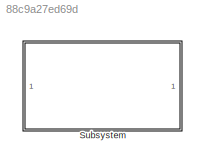
MODEL slx_88c9a27ed69d
KIND library
CONFIG AbsTol = auto
CONFIG EnableMultiTasking = off
CONFIG FixedStep = auto
CONFIG MaxStep = auto
CONFIG MinStep = auto
CONFIG RelTol = 1e-3
CONFIG SampleTimeConstraint = Unconstrained
CONFIG SolverName = VariableStepAuto
CONFIG StartTime = 0.0
CONFIG StopTime = 10.0
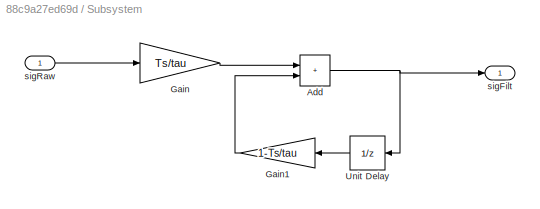
BLOCK [SubSystem] Subsystem
  Ports = [1, 1]
  RequestExecContextInheritance = off
BLOCK [Sum] Subsystem/Add
  IconShape = rectangular
  Ports = [2, 1]
BLOCK [Gain] Subsystem/Gain
  Gain = Ts/tau
BLOCK [Gain] Subsystem/Gain1
  Gain = 1-Ts/tau
BLOCK [UnitDelay] Subsystem/Unit Delay
  HasFrameUpgradeWarning = on
  SampleTime = -1
BLOCK [Outport] Subsystem/sigFilt
BLOCK [Inport] Subsystem/sigRaw
NET Subsystem/Add:1 -> Subsystem/Unit Delay:1, Subsystem/sigFilt:1
LINE Subsystem/Gain1:1 -> Subsystem/Add:2
LINE Subsystem/Gain:1 -> Subsystem/Add:1
LINE Subsystem/Unit Delay:1 -> Subsystem/Gain1:1
LINE Subsystem/sigRaw:1 -> Subsystem/Gain:1
note: NET lines group one-source signal fan-out (src -> all destinations, sorted); 1:1 wires keep LINE
